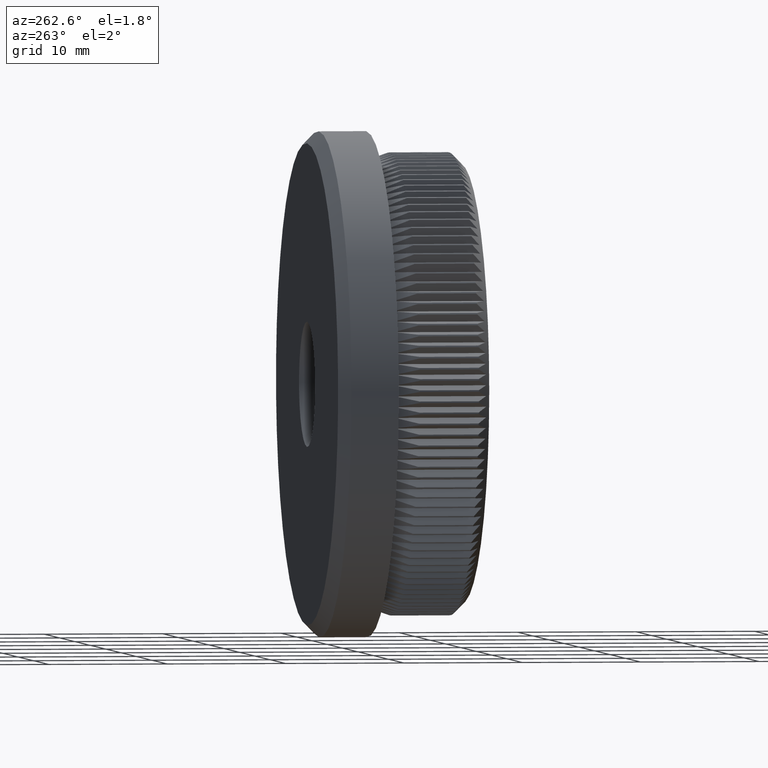
[diagram: clean part render]
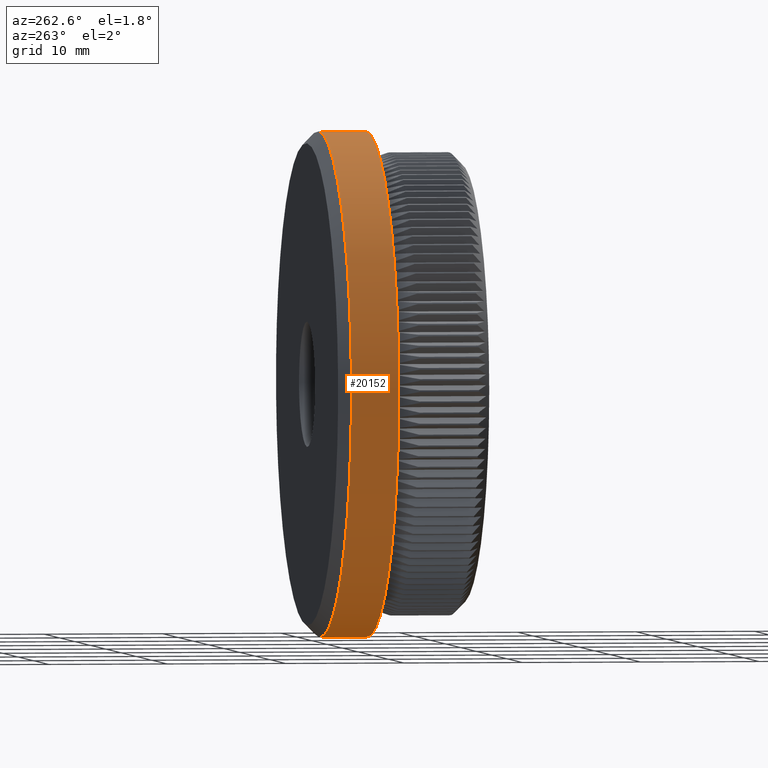
[diagram: same view with one face highlighted and labeled with its STEP entity id]
A machine part, auxiliary view. The second image highlights one B-rep face of the part: STEP entity #20152.
In plain terms, the highlighted cylindrical surface (partial cylindrical patch) has radius 21.2 mm, axis along (-0, -1, -0).
Its self-contained STEP definition (entity closure, byte-faithful):
#35 = AXIS2_PLACEMENT_3D ( 'NONE', #2882, #20521, #5429 ) ;
#836 = VERTEX_POINT ( 'NONE', #28667 ) ;
#1940 = ORIENTED_EDGE ( 'NONE', *, *, #15793, .F. ) ;
#2141 = VERTEX_POINT ( 'NONE', #7194 ) ;
#2882 = CARTESIAN_POINT ( 'NONE',  ( 0.0000000000000000000, 11.99999999999999800, 0.0000000000000000000 ) ) ;
#3334 = CYLINDRICAL_SURFACE ( 'NONE', #32661, 21.19999999999999900 ) ;
#4074 = EDGE_CURVE ( 'NONE', #15637, #11744, #25860, .T. ) ;
#4386 = CARTESIAN_POINT ( 'NONE',  ( 0.0000000000000000000, 8.000000000000000000, 0.0000000000000000000 ) ) ;
#5264 = ORIENTED_EDGE ( 'NONE', *, *, #12323, .T. ) ;
#5429 = DIRECTION ( 'NONE',  ( 0.0000000000000000000, 0.0000000000000000000, 1.000000000000000000 ) ) ;
#5565 = VECTOR ( 'NONE', #14403, 1000.000000000000000 ) ;
#7009 = CIRCLE ( 'NONE', #21838, 21.19999999999999900 ) ;
#7194 = CARTESIAN_POINT ( 'NONE',  ( 2.596251214192388800E-015, 11.99999999999999800, 21.19999999999999900 ) ) ;
#7733 = DIRECTION ( 'NONE',  ( 0.0000000000000000000, 0.0000000000000000000, -1.000000000000000000 ) ) ;
#11744 = VERTEX_POINT ( 'NONE', #24018 ) ;
#12323 = EDGE_CURVE ( 'NONE', #2141, #15637, #28837, .T. ) ;
#14403 = DIRECTION ( 'NONE',  ( -0.0000000000000000000, -1.000000000000000000, -0.0000000000000000000 ) ) ;
#14509 = CARTESIAN_POINT ( 'NONE',  ( 0.0000000000000000000, 0.0000000000000000000, -21.19999999999999900 ) ) ;
#14622 = CARTESIAN_POINT ( 'NONE',  ( 2.596251214192388800E-015, 0.0000000000000000000, 21.19999999999999900 ) ) ;
#14690 = DIRECTION ( 'NONE',  ( -0.0000000000000000000, -1.000000000000000000, -0.0000000000000000000 ) ) ;
#15637 = VERTEX_POINT ( 'NONE', #26800 ) ;
#15793 = EDGE_CURVE ( 'NONE', #836, #11744, #7009, .T. ) ;
#16159 = ORIENTED_EDGE ( 'NONE', *, *, #24462, .F. ) ;
#19762 = LINE ( 'NONE', #14622, #5565 ) ;
#20152 = ADVANCED_FACE ( 'NONE', ( #28548 ), #3334, .T. ) ;
#20394 = CARTESIAN_POINT ( 'NONE',  ( 0.0000000000000000000, 0.0000000000000000000, 0.0000000000000000000 ) ) ;
#20521 = DIRECTION ( 'NONE',  ( -0.0000000000000000000, -1.000000000000000000, -0.0000000000000000000 ) ) ;
#21838 = AXIS2_PLACEMENT_3D ( 'NONE', #4386, #14690, #24693 ) ;
#24018 = CARTESIAN_POINT ( 'NONE',  ( 0.0000000000000000000, 8.000000000000000000, -21.19999999999999900 ) ) ;
#24462 = EDGE_CURVE ( 'NONE', #2141, #836, #19762, .T. ) ;
#24688 = VECTOR ( 'NONE', #24949, 1000.000000000000000 ) ;
#24693 = DIRECTION ( 'NONE',  ( 0.0000000000000000000, 0.0000000000000000000, -1.000000000000000000 ) ) ;
#24918 = ORIENTED_EDGE ( 'NONE', *, *, #4074, .T. ) ;
#24949 = DIRECTION ( 'NONE',  ( -0.0000000000000000000, -1.000000000000000000, -0.0000000000000000000 ) ) ;
#25860 = LINE ( 'NONE', #14509, #24688 ) ;
#26800 = CARTESIAN_POINT ( 'NONE',  ( 0.0000000000000000000, 11.99999999999999800, -21.19999999999999900 ) ) ;
#27852 = EDGE_LOOP ( 'NONE', ( #16159, #5264, #24918, #1940 ) ) ;
#28548 = FACE_OUTER_BOUND ( 'NONE', #27852, .T. ) ;
#28667 = CARTESIAN_POINT ( 'NONE',  ( 2.596251214192388800E-015, 8.000000000000000000, 21.19999999999999900 ) ) ;
#28837 = CIRCLE ( 'NONE', #35, 21.19999999999999900 ) ;
#30190 = DIRECTION ( 'NONE',  ( -0.0000000000000000000, -1.000000000000000000, -0.0000000000000000000 ) ) ;
#32661 = AXIS2_PLACEMENT_3D ( 'NONE', #20394, #30190, #7733 ) ;